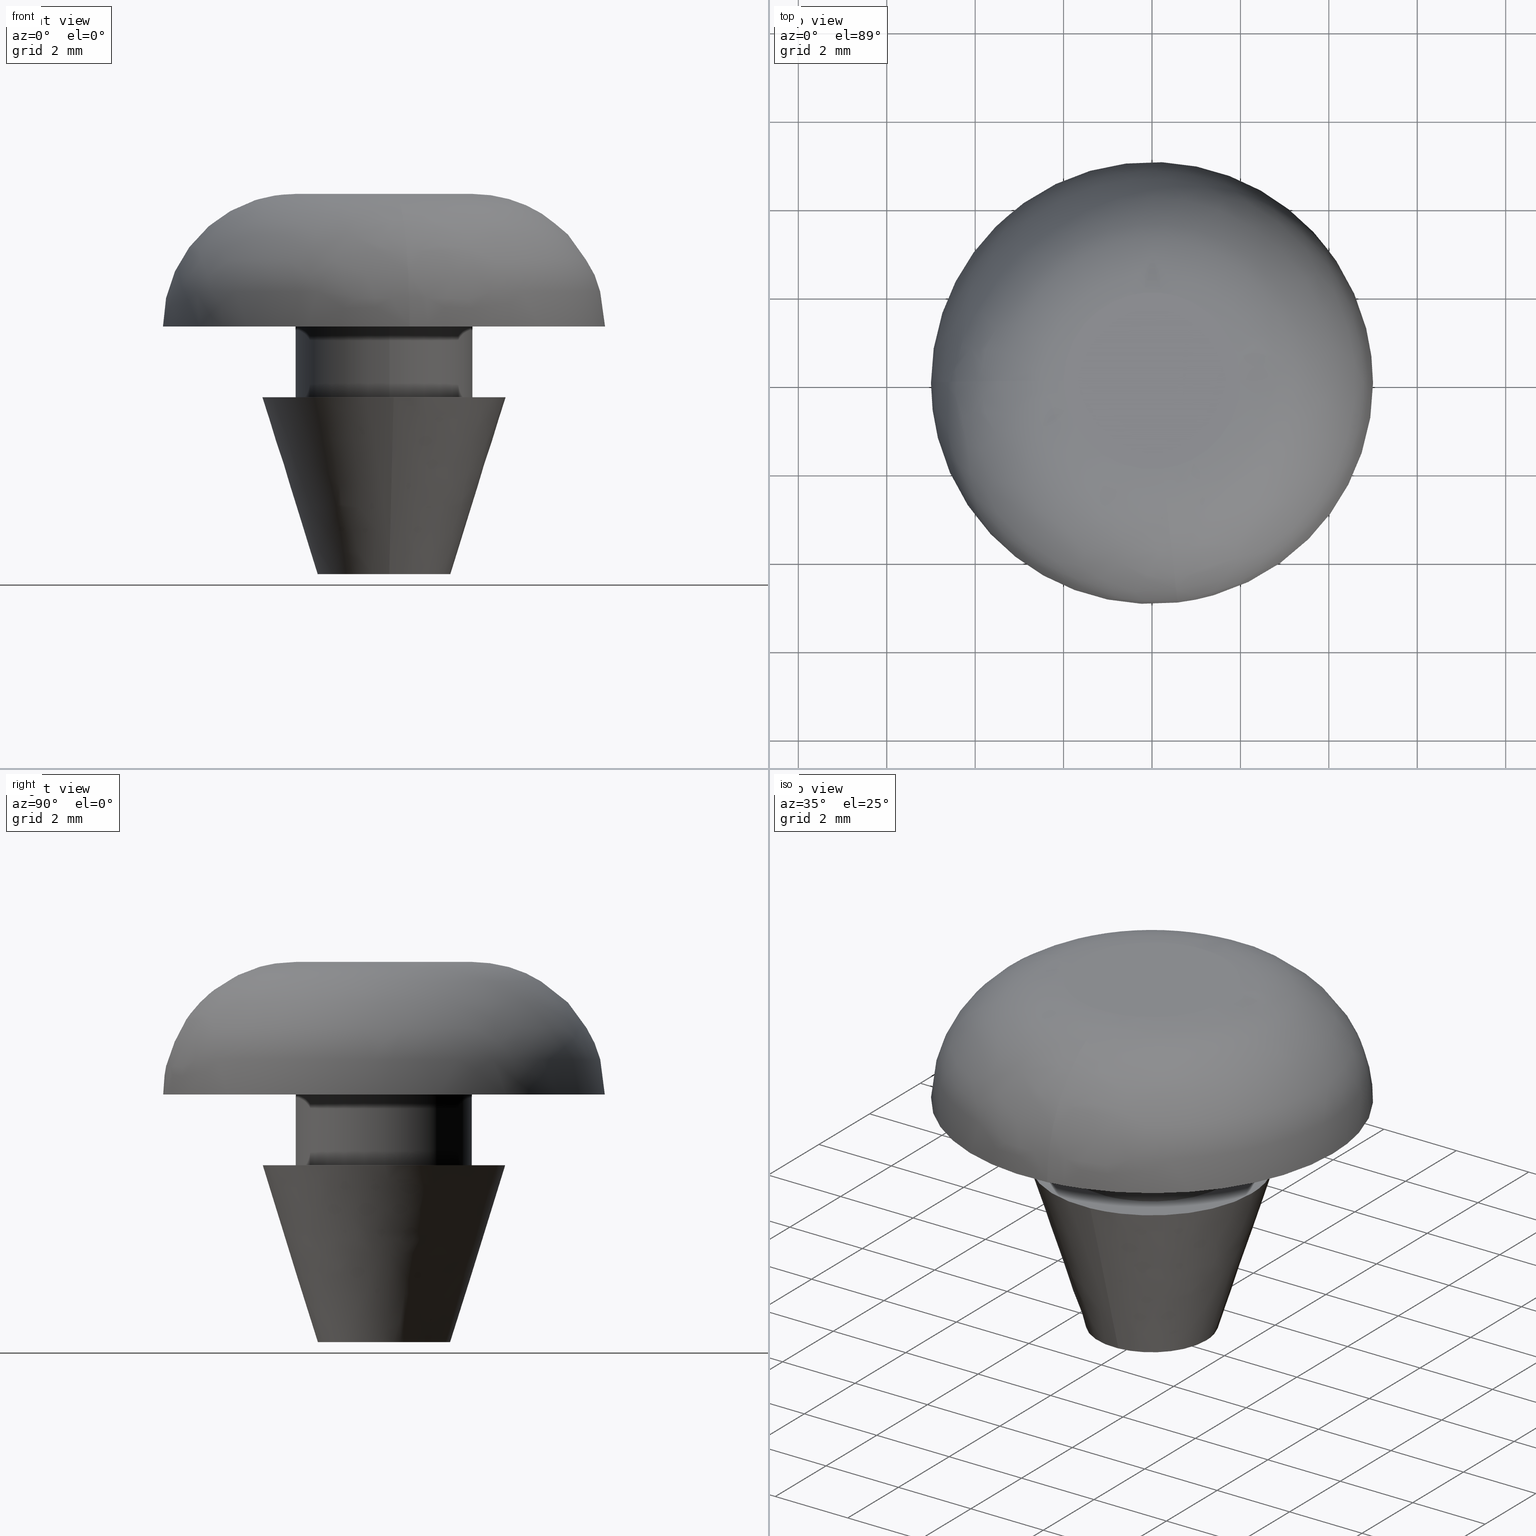
[diagram: canonical four-view strip — front | top / right | iso, engineering-drawing reading convention]
A machine part, canonical four-view strip (front | top / right | iso — engineering-drawing reading convention). The complete STEP part file that produces these views, byte-faithful:
ISO-10303-21;
HEADER;
/****************************************************************
 * Generated by software with PDE/Lib inside                    *
 * PDElib Version 4.4.1-0003, patched  Thursday August 19 11:58 *
 * International Technegroup Inc. (www.iti-oh.com)              *
 ****************************************************************/
FILE_DESCRIPTION((''),'2;1');
FILE_NAME('','2005-12-15T09:47:11',(''),(''),'','CADfix','');
FILE_SCHEMA(('AUTOMOTIVE_DESIGN'));
ENDSEC;
DATA;
#5=APPLICATION_CONTEXT('automotive design');
#6=APPLICATION_PROTOCOL_DEFINITION('Draft International Standard','automotive_design',1998,#5);
#7=PRODUCT_CONTEXT('None',#5,'mechanical');
#8=PRODUCT('cushion','','None',(#7));
#9=PRODUCT_RELATED_PRODUCT_CATEGORY('part','description',(#8));
#10=PRODUCT_DEFINITION_FORMATION('None','None',#8);
#11=PRODUCT_DEFINITION_CONTEXT('part definition',#5,'design');
#12=PRODUCT_DEFINITION('None','None',#10,#11);
#18=(NAMED_UNIT(*)PLANE_ANGLE_UNIT()SI_UNIT($,.RADIAN.));
#19=DIMENSIONAL_EXPONENTS(0.0,0.0,0.0,0.0,0.0,0.0,0.0);
#20=PLANE_ANGLE_MEASURE_WITH_UNIT(PLANE_ANGLE_MEASURE(0.017453292500000),#18);
#24=(CONVERSION_BASED_UNIT('DEGREE',#20)NAMED_UNIT(#19)PLANE_ANGLE_UNIT());
#28=(NAMED_UNIT(*)SI_UNIT($,.STERADIAN.)SOLID_ANGLE_UNIT());
#32=(LENGTH_UNIT()NAMED_UNIT(*)SI_UNIT(.MILLI.,.METRE.));
#34=UNCERTAINTY_MEASURE_WITH_UNIT(LENGTH_MEASURE(0.001000000000000),#32,'DISTANCE_ACCURACY_VALUE','');
#36=(GEOMETRIC_REPRESENTATION_CONTEXT(3)GLOBAL_UNCERTAINTY_ASSIGNED_CONTEXT((#34))GLOBAL_UNIT_ASSIGNED_CONTEXT((#24,#28,#32))REPRESENTATION_CONTEXT('None','None'));
#37=AXIS2_PLACEMENT_3D('',#38,#39,#40);
#38=CARTESIAN_POINT('',(0.0,0.0,0.0));
#39=DIRECTION('',(0.0,0.0,1.0));
#40=DIRECTION('',(1.0,0.0,0.0));
#41=ADVANCED_BREP_SHAPE_REPRESENTATION('',(#37,#891),#36);
#42=PRODUCT_DEFINITION_SHAPE('','',#12);
#43=SHAPE_DEFINITION_REPRESENTATION(#42,#41);
#44=CARTESIAN_POINT('',(0.118034234656758,-0.993009526363666,5.740000000000000));
#45=CARTESIAN_POINT('',(0.089614728637978,-0.996387615448606,5.740000000000000));
#46=CARTESIAN_POINT('',(0.061048539534857,-0.998134798421867,5.740000000000000));
#47=CARTESIAN_POINT('',(-0.937086258887010,-1.059183337956724,5.740000000000000));
#48=CARTESIAN_POINT('',(-0.998134798421867,-0.061048539534857,5.740000000000000));
#49=CARTESIAN_POINT('',(-1.059183337956724,0.937086258887010,5.740000000000000));
#50=CARTESIAN_POINT('',(-0.061048539534857,0.998134798421867,5.740000000000000));
#51=CARTESIAN_POINT('',(0.118034234656758,-0.993009526363666,-0.143500000000000));
#52=CARTESIAN_POINT('',(0.089614728637978,-0.996387615448606,-0.143500000000000));
#53=CARTESIAN_POINT('',(0.061048539534857,-0.998134798421867,-0.143500000000000));
#54=CARTESIAN_POINT('',(-0.937086258887010,-1.059183337956724,-0.143500000000000));
#55=CARTESIAN_POINT('',(-0.998134798421867,-0.061048539534857,-0.143500000000000));
#56=CARTESIAN_POINT('',(-1.059183337956724,0.937086258887010,-0.143500000000000));
#57=CARTESIAN_POINT('',(-0.061048539534857,0.998134798421867,-0.143500000000000));
#65=(BOUNDED_SURFACE()B_SPLINE_SURFACE(2,1,((#44,#51),(#45,#52),(#46,#53),(#47,#54),(#48,#55),(#49,#56),(#50,#57)),.UNSPECIFIED.,.F.,.F.,.U.)B_SPLINE_SURFACE_WITH_KNOTS((3,2,2,3),(2,2),(3.078760800517997,3.141592653589793,4.712388980384690,6.283185307179586),(0.0,5.883500000000001),.UNSPECIFIED.)GEOMETRIC_REPRESENTATION_ITEM()RATIONAL_B_SPLINE_SURFACE(((0.977505800795127,0.977505800795127),(0.988284271247462,0.988284271247462),(1.0,1.0),(0.707106781186548,0.707106781186548),(1.0,1.0),(0.707106781186548,0.707106781186548),(1.0,1.0)))REPRESENTATION_ITEM('')SURFACE());
#66=CARTESIAN_POINT('',(0.118034234668052,-0.993009526362324,5.600000000000000));
#67=VERTEX_POINT('',#66);
#68=CARTESIAN_POINT('',(-1.0,0.0,5.600000000000000));
#69=VERTEX_POINT('',#68);
#70=CARTESIAN_POINT('',(0.118034234668052,-0.993009526362324,5.600000000000000));
#71=CARTESIAN_POINT('',(0.059224119663323,-1.0,5.599999999999999));
#72=CARTESIAN_POINT('',(0.0,-1.0,5.600000000000000));
#73=CARTESIAN_POINT('',(-1.0,-1.0,5.600000000000000));
#74=CARTESIAN_POINT('',(-1.0,0.0,5.600000000000000));
#82=(BOUNDED_CURVE()B_SPLINE_CURVE(2,(#70,#71,#72,#73,#74),.UNSPECIFIED.,.F.,.U.)B_SPLINE_CURVE_WITH_KNOTS((3,2,3),(0.229562473511800,0.250000000000000,0.500000000000000),.UNSPECIFIED.)CURVE()GEOMETRIC_REPRESENTATION_ITEM()RATIONAL_B_SPLINE_CURVE((0.956026754180351,0.976055948329144,1.0,0.707106781186548,1.0))REPRESENTATION_ITEM(''));
#83=EDGE_CURVE('',#67,#69,#82,.T.);
#84=ORIENTED_EDGE('',*,*,#83,.F.);
#85=CARTESIAN_POINT('',(0.118034234668052,-0.993009526362324,-1.277743E-016));
#86=VERTEX_POINT('',#85);
#87=CARTESIAN_POINT('',(0.118034234668052,-0.993009526362324,5.600000000000000));
#88=CARTESIAN_POINT('',(0.118034234668052,-0.993009526362324,-1.277743E-016));
#89=QUASI_UNIFORM_CURVE('',1,(#87,#88),.UNSPECIFIED.,.F.,.U.);
#90=EDGE_CURVE('',#67,#86,#89,.T.);
#91=ORIENTED_EDGE('',*,*,#90,.T.);
#92=CARTESIAN_POINT('',(-1.0,0.0,0.0));
#93=VERTEX_POINT('',#92);
#94=CARTESIAN_POINT('',(0.118034234668052,-0.993009526362324,-1.277743E-016));
#95=CARTESIAN_POINT('',(0.059224119663323,-1.0,0.0));
#96=CARTESIAN_POINT('',(0.0,-1.0,0.0));
#97=CARTESIAN_POINT('',(-1.0,-1.0,0.0));
#98=CARTESIAN_POINT('',(-1.0,0.0,0.0));
#106=(BOUNDED_CURVE()B_SPLINE_CURVE(2,(#94,#95,#96,#97,#98),.UNSPECIFIED.,.F.,.U.)B_SPLINE_CURVE_WITH_KNOTS((3,2,3),(0.229562473511800,0.250000000000000,0.500000000000000),.UNSPECIFIED.)CURVE()GEOMETRIC_REPRESENTATION_ITEM()RATIONAL_B_SPLINE_CURVE((0.956026754180351,0.976055948329144,1.0,0.707106781186548,1.0))REPRESENTATION_ITEM(''));
#107=EDGE_CURVE('',#86,#93,#106,.T.);
#108=ORIENTED_EDGE('',*,*,#107,.T.);
#109=CARTESIAN_POINT('',(-0.061048408130334,0.998134806458894,-1.387779E-016));
#110=VERTEX_POINT('',#109);
#111=CARTESIAN_POINT('',(-1.0,0.0,0.0));
#112=CARTESIAN_POINT('',(-1.0,0.940706315056634,0.0));
#113=CARTESIAN_POINT('',(-0.061048408130334,0.998134806458894,-1.387779E-016));
#121=(BOUNDED_CURVE()B_SPLINE_CURVE(2,(#111,#112,#113),.UNSPECIFIED.,.F.,.U.)B_SPLINE_CURVE_WITH_KNOTS((3,3),(0.500000000000000,0.739333007673568),.UNSPECIFIED.)CURVE()GEOMETRIC_REPRESENTATION_ITEM()RATIONAL_B_SPLINE_CURVE((1.0,0.719603940056736,0.976072139041787))REPRESENTATION_ITEM(''));
#122=EDGE_CURVE('',#93,#110,#121,.T.);
#123=ORIENTED_EDGE('',*,*,#122,.T.);
#124=CARTESIAN_POINT('',(-0.061048406531516,0.998134806556682,5.600000000000000));
#125=VERTEX_POINT('',#124);
#126=CARTESIAN_POINT('',(-0.061048406531516,0.998134806556682,5.600000000000000));
#127=CARTESIAN_POINT('',(-0.061048408130334,0.998134806458894,-1.387779E-016));
#128=QUASI_UNIFORM_CURVE('',1,(#126,#127),.UNSPECIFIED.,.F.,.U.);
#129=EDGE_CURVE('',#125,#110,#128,.T.);
#130=ORIENTED_EDGE('',*,*,#129,.F.);
#131=CARTESIAN_POINT('',(-1.0,0.0,5.600000000000000));
#132=CARTESIAN_POINT('',(-1.0,0.940706318075914,5.600000000000001));
#133=CARTESIAN_POINT('',(-0.061048406531516,0.998134806556682,5.600000000000000));
#141=(BOUNDED_CURVE()B_SPLINE_CURVE(2,(#131,#132,#133),.UNSPECIFIED.,.F.,.U.)B_SPLINE_CURVE_WITH_KNOTS((3,3),(0.500000000000000,0.739333008226339),.UNSPECIFIED.)CURVE()GEOMETRIC_REPRESENTATION_ITEM()RATIONAL_B_SPLINE_CURVE((1.0,0.719603939409124,0.976072140226481))REPRESENTATION_ITEM(''));
#142=EDGE_CURVE('',#69,#125,#141,.T.);
#143=ORIENTED_EDGE('',*,*,#142,.F.);
#144=EDGE_LOOP('',(#84,#91,#108,#123,#130,#143));
#145=FACE_OUTER_BOUND('',#144,.T.);
#146=ADVANCED_FACE('',(#145),#65,.F.);
#147=CARTESIAN_POINT('',(-0.061048539534857,0.998134798421867,5.740000000000000));
#148=CARTESIAN_POINT('',(0.937086258887010,1.059183337956724,5.740000000000000));
#149=CARTESIAN_POINT('',(0.998134798421867,0.061048539534857,5.740000000000000));
#150=CARTESIAN_POINT('',(1.055786196732528,-0.881543490839501,5.740000000000000));
#151=CARTESIAN_POINT('',(0.118034234656758,-0.993009526363666,5.740000000000000));
#152=CARTESIAN_POINT('',(-0.061048539534857,0.998134798421867,-0.143500000000000));
#153=CARTESIAN_POINT('',(0.937086258887010,1.059183337956724,-0.143500000000000));
#154=CARTESIAN_POINT('',(0.998134798421867,0.061048539534857,-0.143500000000000));
#155=CARTESIAN_POINT('',(1.055786196732528,-0.881543490839501,-0.143500000000000));
#156=CARTESIAN_POINT('',(0.118034234656758,-0.993009526363666,-0.143500000000000));
#164=(BOUNDED_SURFACE()B_SPLINE_SURFACE(2,1,((#147,#152),(#148,#153),(#149,#154),(#150,#155),(#151,#156)),.UNSPECIFIED.,.F.,.F.,.U.)B_SPLINE_SURFACE_WITH_KNOTS((3,2,3),(2,2),(0.0,1.570796326794897,3.078760800517997),(0.0,5.883500000000001),.UNSPECIFIED.)GEOMETRIC_REPRESENTATION_ITEM()RATIONAL_B_SPLINE_SURFACE(((1.0,1.0),(0.707106781186548,0.707106781186548),(1.0,1.0),(0.718822509939086,0.718822509939086),(0.977505800795127,0.977505800795127)))REPRESENTATION_ITEM('')SURFACE());
#165=CARTESIAN_POINT('',(1.0,0.0,5.600000000000000));
#166=VERTEX_POINT('',#165);
#167=CARTESIAN_POINT('',(1.0,0.0,5.600000000000000));
#168=CARTESIAN_POINT('',(1.0,-0.888174525931023,5.600000000000000));
#169=CARTESIAN_POINT('',(0.118034234668052,-0.993009526362324,5.600000000000000));
#177=(BOUNDED_CURVE()B_SPLINE_CURVE(2,(#167,#168,#169),.UNSPECIFIED.,.F.,.U.)B_SPLINE_CURVE_WITH_KNOTS((3,3),(0.0,0.229562473511800),.UNSPECIFIED.)CURVE()GEOMETRIC_REPRESENTATION_ITEM()RATIONAL_B_SPLINE_CURVE((1.0,0.731050832857404,0.956026754180351))REPRESENTATION_ITEM(''));
#178=EDGE_CURVE('',#166,#67,#177,.T.);
#179=ORIENTED_EDGE('',*,*,#178,.F.);
#180=CARTESIAN_POINT('',(-0.061048406531516,0.998134806556682,5.600000000000000));
#181=CARTESIAN_POINT('',(-0.030552629922321,1.0,5.600000000000000));
#182=CARTESIAN_POINT('',(0.0,1.0,5.600000000000000));
#183=CARTESIAN_POINT('',(1.0,1.0,5.600000000000000));
#184=CARTESIAN_POINT('',(1.0,0.0,5.600000000000000));
#192=(BOUNDED_CURVE()B_SPLINE_CURVE(2,(#180,#181,#182,#183,#184),.UNSPECIFIED.,.F.,.U.)B_SPLINE_CURVE_WITH_KNOTS((3,2,3),(0.739333008226339,0.750000000000000,1.0),.UNSPECIFIED.)CURVE()GEOMETRIC_REPRESENTATION_ITEM()RATIONAL_B_SPLINE_CURVE((0.976072140226482,0.987502841777424,1.0,0.707106781186548,1.0))REPRESENTATION_ITEM(''));
#193=EDGE_CURVE('',#125,#166,#192,.T.);
#194=ORIENTED_EDGE('',*,*,#193,.F.);
#195=ORIENTED_EDGE('',*,*,#129,.T.);
#196=CARTESIAN_POINT('',(1.0,0.0,0.0));
#197=VERTEX_POINT('',#196);
#198=CARTESIAN_POINT('',(-0.061048408130334,0.998134806458894,-1.387779E-016));
#199=CARTESIAN_POINT('',(-0.030552631525622,1.0,0.0));
#200=CARTESIAN_POINT('',(0.0,1.0,0.0));
#201=CARTESIAN_POINT('',(1.0,1.0,0.0));
#202=CARTESIAN_POINT('',(1.0,0.0,0.0));
#210=(BOUNDED_CURVE()B_SPLINE_CURVE(2,(#198,#199,#200,#201,#202),.UNSPECIFIED.,.F.,.U.)B_SPLINE_CURVE_WITH_KNOTS((3,2,3),(0.739333007673567,0.750000000000000,1.0),.UNSPECIFIED.)CURVE()GEOMETRIC_REPRESENTATION_ITEM()RATIONAL_B_SPLINE_CURVE((0.976072139041785,0.987502841129810,1.0,0.707106781186548,1.0))REPRESENTATION_ITEM(''));
#211=EDGE_CURVE('',#110,#197,#210,.T.);
#212=ORIENTED_EDGE('',*,*,#211,.T.);
#213=CARTESIAN_POINT('',(1.0,0.0,0.0));
#214=CARTESIAN_POINT('',(1.0,-0.888174525931023,0.0));
#215=CARTESIAN_POINT('',(0.118034234668052,-0.993009526362324,-1.277743E-016));
#223=(BOUNDED_CURVE()B_SPLINE_CURVE(2,(#213,#214,#215),.UNSPECIFIED.,.F.,.U.)B_SPLINE_CURVE_WITH_KNOTS((3,3),(0.0,0.229562473511800),.UNSPECIFIED.)CURVE()GEOMETRIC_REPRESENTATION_ITEM()RATIONAL_B_SPLINE_CURVE((1.0,0.731050832857404,0.956026754180351))REPRESENTATION_ITEM(''));
#224=EDGE_CURVE('',#197,#86,#223,.T.);
#225=ORIENTED_EDGE('',*,*,#224,.T.);
#226=ORIENTED_EDGE('',*,*,#90,.F.);
#227=EDGE_LOOP('',(#179,#194,#195,#212,#225,#226));
#228=FACE_OUTER_BOUND('',#227,.T.);
#229=ADVANCED_FACE('',(#228),#164,.F.);
#230=CARTESIAN_POINT('',(-0.236068469313517,1.986019052727332,5.640000000000002));
#231=CARTESIAN_POINT('',(-0.179229457275955,1.992775230897211,5.640000000000001));
#232=CARTESIAN_POINT('',(-0.122097079069714,1.996269596843733,5.640000000000001));
#233=CARTESIAN_POINT('',(1.874172517774020,2.118366675913447,5.640000000000001));
#234=CARTESIAN_POINT('',(1.996269596843733,0.122097079069714,5.640000000000001));
#235=CARTESIAN_POINT('',(2.118366675913447,-1.874172517774020,5.640000000000001));
#236=CARTESIAN_POINT('',(0.122097079069714,-1.996269596843733,5.640000000000001));
#237=CARTESIAN_POINT('',(-0.236068469313517,1.986019052727332,3.959000000000000));
#238=CARTESIAN_POINT('',(-0.179229457275955,1.992775230897211,3.959000000000001));
#239=CARTESIAN_POINT('',(-0.122097079069714,1.996269596843733,3.959000000000000));
#240=CARTESIAN_POINT('',(1.874172517774020,2.118366675913447,3.959000000000000));
#241=CARTESIAN_POINT('',(1.996269596843733,0.122097079069714,3.959000000000000));
#242=CARTESIAN_POINT('',(2.118366675913447,-1.874172517774020,3.959000000000000));
#243=CARTESIAN_POINT('',(0.122097079069714,-1.996269596843733,3.959000000000000));
#251=(BOUNDED_SURFACE()B_SPLINE_SURFACE(2,1,((#230,#237),(#231,#238),(#232,#239),(#233,#240),(#234,#241),(#235,#242),(#236,#243)),.UNSPECIFIED.,.F.,.F.,.U.)B_SPLINE_SURFACE_WITH_KNOTS((3,2,2,3),(2,2),(0.0,0.132548339959391,3.446256838944149,6.759965337928908),(0.0,1.0),.UNSPECIFIED.)GEOMETRIC_REPRESENTATION_ITEM()RATIONAL_B_SPLINE_SURFACE(((0.977505800795127,0.977505800795127),(0.988284271247462,0.988284271247462),(1.0,1.0),(0.707106781186548,0.707106781186548),(1.0,1.0),(0.707106781186548,0.707106781186548),(1.0,1.0)))REPRESENTATION_ITEM('')SURFACE());
#252=CARTESIAN_POINT('',(-0.236064975085184,1.986019468063102,5.599999999999999));
#253=VERTEX_POINT('',#252);
#254=CARTESIAN_POINT('',(2.0,0.0,5.600000000000000));
#255=VERTEX_POINT('',#254);
#256=CARTESIAN_POINT('',(-0.236064975085184,1.986019468063103,5.599999999999999));
#257=CARTESIAN_POINT('',(-0.118446473719847,2.0,5.600000000000000));
#258=CARTESIAN_POINT('',(0.0,2.0,5.600000000000000));
#259=CARTESIAN_POINT('',(2.000000000000000,2.000000000000000,5.600000000000000));
#260=CARTESIAN_POINT('',(2.0,0.0,5.600000000000000));
#268=(BOUNDED_CURVE()B_SPLINE_CURVE(2,(#256,#257,#258,#259,#260),.UNSPECIFIED.,.F.,.U.)B_SPLINE_CURVE_WITH_KNOTS((3,2,3),(0.229562770862239,0.250000000000000,0.500000000000000),.UNSPECIFIED.)CURVE()GEOMETRIC_REPRESENTATION_ITEM()RATIONAL_B_SPLINE_CURVE((0.956027337000208,0.976056296696852,1.0,0.707106781186548,1.0))REPRESENTATION_ITEM(''));
#269=EDGE_CURVE('',#253,#255,#268,.T.);
#270=ORIENTED_EDGE('',*,*,#269,.T.);
#271=CARTESIAN_POINT('',(0.122096446461035,-1.996269635535537,5.599999999999997));
#272=VERTEX_POINT('',#271);
#273=CARTESIAN_POINT('',(2.0,0.0,5.600000000000000));
#274=CARTESIAN_POINT('',(2.0,-1.881413328461733,5.600000000000000));
#275=CARTESIAN_POINT('',(0.122096446461035,-1.996269635535536,5.599999999999998));
#283=(BOUNDED_CURVE()B_SPLINE_CURVE(2,(#273,#274,#275),.UNSPECIFIED.,.F.,.U.)B_SPLINE_CURVE_WITH_KNOTS((3,3),(0.500000000000000,0.739333071600552),.UNSPECIFIED.)CURVE()GEOMETRIC_REPRESENTATION_ITEM()RATIONAL_B_SPLINE_CURVE((1.0,0.719603865161616,0.976072276049575))REPRESENTATION_ITEM(''));
#284=EDGE_CURVE('',#255,#272,#283,.T.);
#285=ORIENTED_EDGE('',*,*,#284,.T.);
#286=CARTESIAN_POINT('',(0.122096454071438,-1.996269635070069,4.0));
#287=VERTEX_POINT('',#286);
#288=CARTESIAN_POINT('',(0.122096446461035,-1.996269635535537,5.599999999999997));
#289=CARTESIAN_POINT('',(0.122096454071438,-1.996269635070069,4.0));
#290=QUASI_UNIFORM_CURVE('',1,(#288,#289),.UNSPECIFIED.,.F.,.U.);
#291=EDGE_CURVE('',#272,#287,#290,.T.);
#292=ORIENTED_EDGE('',*,*,#291,.T.);
#293=CARTESIAN_POINT('',(2.0,0.0,4.0));
#294=VERTEX_POINT('',#293);
#295=CARTESIAN_POINT('',(2.0,0.0,4.0));
#296=CARTESIAN_POINT('',(2.0,-1.881413314089851,4.0));
#297=CARTESIAN_POINT('',(0.122096454071438,-1.996269635070070,4.000000000000000));
#305=(BOUNDED_CURVE()B_SPLINE_CURVE(2,(#295,#296,#297),.UNSPECIFIED.,.F.,.U.)B_SPLINE_CURVE_WITH_KNOTS((3,3),(0.500000000000000,0.739333070284946),.UNSPECIFIED.)CURVE()GEOMETRIC_REPRESENTATION_ITEM()RATIONAL_B_SPLINE_CURVE((1.0,0.719603866702944,0.976072273229979))REPRESENTATION_ITEM(''));
#306=EDGE_CURVE('',#294,#287,#305,.T.);
#307=ORIENTED_EDGE('',*,*,#306,.F.);
#308=CARTESIAN_POINT('',(-0.236065017184175,1.986019463059148,4.0));
#309=VERTEX_POINT('',#308);
#310=CARTESIAN_POINT('',(-0.236065017184175,1.986019463059149,4.000000000000000));
#311=CARTESIAN_POINT('',(-0.118446494991864,2.0,4.0));
#312=CARTESIAN_POINT('',(0.0,2.0,4.0));
#313=CARTESIAN_POINT('',(2.000000000000000,2.000000000000000,4.000000000000000));
#314=CARTESIAN_POINT('',(2.0,0.0,4.0));
#322=(BOUNDED_CURVE()B_SPLINE_CURVE(2,(#310,#311,#312,#313,#314),.UNSPECIFIED.,.F.,.U.)B_SPLINE_CURVE_WITH_KNOTS((3,2,3),(0.229562767279762,0.250000000000000,0.500000000000000),.UNSPECIFIED.)CURVE()GEOMETRIC_REPRESENTATION_ITEM()RATIONAL_B_SPLINE_CURVE((0.956027329978387,0.976056292499719,1.0,0.707106781186548,1.0))REPRESENTATION_ITEM(''));
#323=EDGE_CURVE('',#309,#294,#322,.T.);
#324=ORIENTED_EDGE('',*,*,#323,.F.);
#325=CARTESIAN_POINT('',(-0.236064975085184,1.986019468063102,5.599999999999999));
#326=CARTESIAN_POINT('',(-0.236065017184175,1.986019463059148,4.0));
#327=QUASI_UNIFORM_CURVE('',1,(#325,#326),.UNSPECIFIED.,.F.,.U.);
#328=EDGE_CURVE('',#253,#309,#327,.T.);
#329=ORIENTED_EDGE('',*,*,#328,.F.);
#330=EDGE_LOOP('',(#270,#285,#292,#307,#324,#329));
#331=FACE_OUTER_BOUND('',#330,.T.);
#332=ADVANCED_FACE('',(#331),#251,.T.);
#333=CARTESIAN_POINT('',(0.149605438622945,-1.994587113497415,5.639999999999998));
#334=CARTESIAN_POINT('',(0.135890624341920,-1.995425947473722,5.640000000000002));
#335=CARTESIAN_POINT('',(-1.874172517774020,-2.118366675913447,5.640000000000001));
#336=CARTESIAN_POINT('',(-1.996269596843733,-0.122097079069714,5.640000000000001));
#337=CARTESIAN_POINT('',(-2.111572393465055,1.763086981679002,5.640000000000001));
#338=CARTESIAN_POINT('',(-0.222025548796273,1.987688266699195,5.640000000000002));
#339=CARTESIAN_POINT('',(-0.208058103596494,1.989348509285490,5.640000000000002));
#340=CARTESIAN_POINT('',(0.149605438622945,-1.994587113497415,3.958999999999998));
#341=CARTESIAN_POINT('',(0.135890624341920,-1.995425947473722,3.959000000000000));
#342=CARTESIAN_POINT('',(-1.874172517774020,-2.118366675913447,3.959000000000000));
#343=CARTESIAN_POINT('',(-1.996269596843733,-0.122097079069714,3.959000000000000));
#344=CARTESIAN_POINT('',(-2.111572393465055,1.763086981679002,3.959000000000000));
#345=CARTESIAN_POINT('',(-0.222025548796273,1.987688266699195,3.959000000000001));
#346=CARTESIAN_POINT('',(-0.208058103596494,1.989348509285490,3.959000000000001));
#354=(BOUNDED_SURFACE()B_SPLINE_SURFACE(2,1,((#333,#340),(#334,#341),(#335,#342),(#336,#343),(#337,#344),(#338,#345),(#339,#346)),.UNSPECIFIED.,.F.,.F.,.U.)B_SPLINE_SURFACE_WITH_KNOTS((3,1,2,1,3),(2,2),(0.0,0.032473625446056,3.346182124430814,6.527342283456183,6.559820672328827),(0.0,1.0),.UNSPECIFIED.)GEOMETRIC_REPRESENTATION_ITEM()RATIONAL_B_SPLINE_SURFACE(((1.005740580190655,1.005740580190655),(1.002870290095327,1.002870290095327),(0.707106781186548,0.707106781186548),(1.0,1.0),(0.718822509939086,0.718822509939086),(0.980146855031721,0.980146855031721),(0.982787909268315,0.982787909268315)))REPRESENTATION_ITEM('')SURFACE());
#355=CARTESIAN_POINT('',(-2.0,0.0,5.600000000000000));
#356=VERTEX_POINT('',#355);
#357=CARTESIAN_POINT('',(-2.0,0.0,5.600000000000000));
#358=CARTESIAN_POINT('',(-2.000000000000000,1.776352199238033,5.600000000000001));
#359=CARTESIAN_POINT('',(-0.236064975085184,1.986019468063103,5.599999999999999));
#367=(BOUNDED_CURVE()B_SPLINE_CURVE(2,(#357,#358,#359),.UNSPECIFIED.,.F.,.U.)B_SPLINE_CURVE_WITH_KNOTS((3,3),(0.0,0.229562770862239),.UNSPECIFIED.)CURVE()GEOMETRIC_REPRESENTATION_ITEM()RATIONAL_B_SPLINE_CURVE((1.0,0.731050484489696,0.956027337000208))REPRESENTATION_ITEM(''));
#368=EDGE_CURVE('',#356,#253,#367,.T.);
#369=ORIENTED_EDGE('',*,*,#368,.T.);
#370=ORIENTED_EDGE('',*,*,#328,.T.);
#371=CARTESIAN_POINT('',(-2.0,0.0,4.0));
#372=VERTEX_POINT('',#371);
#373=CARTESIAN_POINT('',(-2.0,0.0,4.0));
#374=CARTESIAN_POINT('',(-2.000000000000000,1.776352161318441,4.000000000000001));
#375=CARTESIAN_POINT('',(-0.236065017184175,1.986019463059149,4.000000000000001));
#383=(BOUNDED_CURVE()B_SPLINE_CURVE(2,(#373,#374,#375),.UNSPECIFIED.,.F.,.U.)B_SPLINE_CURVE_WITH_KNOTS((3,3),(0.0,0.229562767279762),.UNSPECIFIED.)CURVE()GEOMETRIC_REPRESENTATION_ITEM()RATIONAL_B_SPLINE_CURVE((1.0,0.731050488686828,0.956027329978387))REPRESENTATION_ITEM(''));
#384=EDGE_CURVE('',#372,#309,#383,.T.);
#385=ORIENTED_EDGE('',*,*,#384,.F.);
#386=CARTESIAN_POINT('',(0.122096454071438,-1.996269635070070,4.000000000000001));
#387=CARTESIAN_POINT('',(0.061104899846485,-2.000000000000000,4.0));
#388=CARTESIAN_POINT('',(0.0,-2.0,4.0));
#389=CARTESIAN_POINT('',(-2.000000000000000,-2.000000000000000,4.000000000000000));
#390=CARTESIAN_POINT('',(-2.0,0.0,4.0));
#398=(BOUNDED_CURVE()B_SPLINE_CURVE(2,(#386,#387,#388,#389,#390),.UNSPECIFIED.,.F.,.U.)B_SPLINE_CURVE_WITH_KNOTS((3,2,3),(0.739333070284947,0.750000000000000,1.0),.UNSPECIFIED.)CURVE()GEOMETRIC_REPRESENTATION_ITEM()RATIONAL_B_SPLINE_CURVE((0.976072273229982,0.987502914483605,1.0,0.707106781186548,1.0))REPRESENTATION_ITEM(''));
#399=EDGE_CURVE('',#287,#372,#398,.T.);
#400=ORIENTED_EDGE('',*,*,#399,.F.);
#401=ORIENTED_EDGE('',*,*,#291,.F.);
#402=CARTESIAN_POINT('',(0.122096446461035,-1.996269635535537,5.599999999999997));
#403=CARTESIAN_POINT('',(0.061104892214744,-2.000000000000000,5.600000000000000));
#404=CARTESIAN_POINT('',(0.0,-2.0,5.600000000000000));
#405=CARTESIAN_POINT('',(-2.000000000000000,-2.000000000000000,5.600000000000000));
#406=CARTESIAN_POINT('',(-2.0,0.0,5.600000000000000));
#414=(BOUNDED_CURVE()B_SPLINE_CURVE(2,(#402,#403,#404,#405,#406),.UNSPECIFIED.,.F.,.U.)B_SPLINE_CURVE_WITH_KNOTS((3,2,3),(0.739333071600552,0.750000000000000,1.0),.UNSPECIFIED.)CURVE()GEOMETRIC_REPRESENTATION_ITEM()RATIONAL_B_SPLINE_CURVE((0.976072276049576,0.987502916024932,1.0,0.707106781186548,1.0))REPRESENTATION_ITEM(''));
#415=EDGE_CURVE('',#272,#356,#414,.T.);
#416=ORIENTED_EDGE('',*,*,#415,.T.);
#417=EDGE_LOOP('',(#369,#370,#385,#400,#401,#416));
#418=FACE_OUTER_BOUND('',#417,.T.);
#419=ADVANCED_FACE('',(#418),#354,.T.);
#420=CARTESIAN_POINT('',(-0.115236796850273,1.464222333920532,-0.100000000000000));
#421=CARTESIAN_POINT('',(-1.579459130770805,1.348985537070258,-0.100000000000000));
#422=CARTESIAN_POINT('',(-1.464222333920532,-0.115236796850273,-0.100000000000000));
#423=CARTESIAN_POINT('',(-1.348985537070258,-1.579459130770805,-0.100000000000000));
#424=CARTESIAN_POINT('',(0.115236796850273,-1.464222333920532,-0.100000000000000));
#425=CARTESIAN_POINT('',(-0.218275656161607,2.773455176112237,4.102500000000000));
#426=CARTESIAN_POINT('',(-2.991730832273845,2.555179519950629,4.102499999999999));
#427=CARTESIAN_POINT('',(-2.773455176112237,-0.218275656161607,4.102500000000000));
#428=CARTESIAN_POINT('',(-2.555179519950629,-2.991730832273845,4.102499999999999));
#429=CARTESIAN_POINT('',(0.218275656161607,-2.773455176112237,4.102500000000000));
#437=(BOUNDED_SURFACE()B_SPLINE_SURFACE(2,1,((#420,#425),(#421,#426),(#422,#427),(#423,#428),(#424,#429)),.UNSPECIFIED.,.F.,.F.,.U.)B_SPLINE_SURFACE_WITH_KNOTS((3,2,3),(2,2),(0.0,4.609420298783092,9.218840597566183),(0.0,4.402921063521530),.UNSPECIFIED.)GEOMETRIC_REPRESENTATION_ITEM()RATIONAL_B_SPLINE_SURFACE(((1.0,1.0),(0.707106781186548,0.707106781186548),(1.0,1.0),(0.707106781186548,0.707106781186548),(1.0,1.0)))REPRESENTATION_ITEM('')SURFACE());
#438=CARTESIAN_POINT('',(-1.500000000000000,0.0,0.0));
#439=VERTEX_POINT('',#438);
#440=CARTESIAN_POINT('',(-0.117687202829106,1.495375771703661,-0.000001091936049));
#441=VERTEX_POINT('',#440);
#442=CARTESIAN_POINT('',(-1.500000000000000,0.0,0.0));
#443=CARTESIAN_POINT('',(-1.499999986613836,1.386586882573644,-0.000000545968024));
#444=CARTESIAN_POINT('',(-0.117687202829106,1.495375771703661,-0.000001091936049));
#452=(BOUNDED_CURVE()B_SPLINE_CURVE(2,(#442,#443,#444),.UNSPECIFIED.,.F.,.U.)B_SPLINE_CURVE_WITH_KNOTS((3,3),(0.0,0.236331462727521),.UNSPECIFIED.)CURVE()GEOMETRIC_REPRESENTATION_ITEM()RATIONAL_B_SPLINE_CURVE((1.0,0.723120468699380,0.969723694451448))REPRESENTATION_ITEM(''));
#453=EDGE_CURVE('',#439,#441,#452,.T.);
#454=ORIENTED_EDGE('',*,*,#453,.F.);
#455=CARTESIAN_POINT('',(0.117687202829106,-1.495375771703661,-0.000001091936049));
#456=VERTEX_POINT('',#455);
#457=CARTESIAN_POINT('',(0.117687202829106,-1.495375771703661,-0.000001091936049));
#458=CARTESIAN_POINT('',(0.058934423949279,-1.499999665998666,-0.000001072107037));
#459=CARTESIAN_POINT('',(-0.000000025760220,-1.499999672681416,-0.000001050656154));
#460=CARTESIAN_POINT('',(-1.500000012374056,-1.499999842770821,-0.000000504688129));
#461=CARTESIAN_POINT('',(-1.500000000000000,0.0,0.0));
#469=(BOUNDED_CURVE()B_SPLINE_CURVE(2,(#457,#458,#459,#460,#461),.UNSPECIFIED.,.F.,.U.)B_SPLINE_CURVE_WITH_KNOTS((3,2,3),(0.736331462727521,0.750000000000000,1.0),.UNSPECIFIED.)CURVE()GEOMETRIC_REPRESENTATION_ITEM()RATIONAL_B_SPLINE_CURVE((0.969723694451448,0.983986312487168,1.0,0.707106781186548,1.0))REPRESENTATION_ITEM(''));
#470=EDGE_CURVE('',#456,#439,#469,.T.);
#471=ORIENTED_EDGE('',*,*,#470,.F.);
#472=CARTESIAN_POINT('',(0.215762513258509,-2.741522667765943,4.000000000001242));
#473=VERTEX_POINT('',#472);
#474=CARTESIAN_POINT('',(0.117687202829106,-1.495375771703661,-0.000001091936049));
#475=CARTESIAN_POINT('',(0.215762513258509,-2.741522667765943,4.000000000001242));
#476=QUASI_UNIFORM_CURVE('',1,(#474,#475),.UNSPECIFIED.,.F.,.U.);
#477=EDGE_CURVE('',#456,#473,#476,.T.);
#478=ORIENTED_EDGE('',*,*,#477,.T.);
#479=CARTESIAN_POINT('',(-2.750000000000000,0.0,4.0));
#480=VERTEX_POINT('',#479);
#481=CARTESIAN_POINT('',(0.215762513258509,-2.741522667765943,4.000000000001241));
#482=CARTESIAN_POINT('',(0.108047794278028,-2.750000000000000,4.0));
#483=CARTESIAN_POINT('',(0.0,-2.750000000000000,4.0));
#484=CARTESIAN_POINT('',(-2.750000000000000,-2.750000000000000,4.000000000000000));
#485=CARTESIAN_POINT('',(-2.750000000000000,0.0,4.0));
#493=(BOUNDED_CURVE()B_SPLINE_CURVE(2,(#481,#482,#483,#484,#485),.UNSPECIFIED.,.F.,.U.)B_SPLINE_CURVE_WITH_KNOTS((3,2,3),(0.736331300631903,0.750000000000000,1.0),.UNSPECIFIED.)CURVE()GEOMETRIC_REPRESENTATION_ITEM()RATIONAL_B_SPLINE_CURVE((0.969723356170014,0.983986122580339,1.0,0.707106781186548,1.0))REPRESENTATION_ITEM(''));
#494=EDGE_CURVE('',#473,#480,#493,.T.);
#495=ORIENTED_EDGE('',*,*,#494,.T.);
#496=CARTESIAN_POINT('',(-0.215762513258509,2.741522667765943,4.000000000001242));
#497=VERTEX_POINT('',#496);
#498=CARTESIAN_POINT('',(-2.750000000000000,0.0,4.0));
#499=CARTESIAN_POINT('',(-2.750000000000000,2.542073852047226,4.000000000000001));
#500=CARTESIAN_POINT('',(-0.215762513258509,2.741522667765943,4.000000000001241));
#508=(BOUNDED_CURVE()B_SPLINE_CURVE(2,(#498,#499,#500),.UNSPECIFIED.,.F.,.U.)B_SPLINE_CURVE_WITH_KNOTS((3,3),(0.0,0.236331300631903),.UNSPECIFIED.)CURVE()GEOMETRIC_REPRESENTATION_ITEM()RATIONAL_B_SPLINE_CURVE((1.0,0.723120658606208,0.969723356170013))REPRESENTATION_ITEM(''));
#509=EDGE_CURVE('',#480,#497,#508,.T.);
#510=ORIENTED_EDGE('',*,*,#509,.T.);
#511=CARTESIAN_POINT('',(-0.117687202829106,1.495375771703661,-0.000001091936049));
#512=CARTESIAN_POINT('',(-0.215762513258509,2.741522667765943,4.000000000001242));
#513=QUASI_UNIFORM_CURVE('',1,(#511,#512),.UNSPECIFIED.,.F.,.U.);
#514=EDGE_CURVE('',#441,#497,#513,.T.);
#515=ORIENTED_EDGE('',*,*,#514,.F.);
#516=EDGE_LOOP('',(#454,#471,#478,#495,#510,#515));
#517=FACE_OUTER_BOUND('',#516,.T.);
#518=ADVANCED_FACE('',(#517),#437,.T.);
#519=CARTESIAN_POINT('',(0.115236796850273,-1.464222333920532,-0.100000000000000));
#520=CARTESIAN_POINT('',(1.579459130770805,-1.348985537070258,-0.100000000000000));
#521=CARTESIAN_POINT('',(1.464222333920532,0.115236796850273,-0.100000000000000));
#522=CARTESIAN_POINT('',(1.348985537070258,1.579459130770805,-0.100000000000000));
#523=CARTESIAN_POINT('',(-0.115236796850273,1.464222333920532,-0.100000000000000));
#524=CARTESIAN_POINT('',(0.218275656161607,-2.773455176112237,4.102500000000000));
#525=CARTESIAN_POINT('',(2.991730832273845,-2.555179519950629,4.102499999999999));
#526=CARTESIAN_POINT('',(2.773455176112237,0.218275656161607,4.102500000000000));
#527=CARTESIAN_POINT('',(2.555179519950629,2.991730832273845,4.102499999999999));
#528=CARTESIAN_POINT('',(-0.218275656161607,2.773455176112237,4.102500000000000));
#536=(BOUNDED_SURFACE()B_SPLINE_SURFACE(2,1,((#519,#524),(#520,#525),(#521,#526),(#522,#527),(#523,#528)),.UNSPECIFIED.,.F.,.F.,.U.)B_SPLINE_SURFACE_WITH_KNOTS((3,2,3),(2,2),(0.0,4.609420298783092,9.218840597566183),(0.0,4.402921063521530),.UNSPECIFIED.)GEOMETRIC_REPRESENTATION_ITEM()RATIONAL_B_SPLINE_SURFACE(((1.0,1.0),(0.707106781186548,0.707106781186548),(1.0,1.0),(0.707106781186548,0.707106781186548),(1.0,1.0)))REPRESENTATION_ITEM('')SURFACE());
#537=CARTESIAN_POINT('',(1.500000000000000,0.0,0.0));
#538=VERTEX_POINT('',#537);
#539=CARTESIAN_POINT('',(-0.117687202829106,1.495375771703661,-0.000001091936049));
#540=CARTESIAN_POINT('',(-0.058934423949279,1.499999665998666,-0.000001072107037));
#541=CARTESIAN_POINT('',(0.000000025760220,1.499999672681416,-0.000001050656154));
#542=CARTESIAN_POINT('',(1.500000012374056,1.499999842770821,-0.000000504688129));
#543=CARTESIAN_POINT('',(1.500000000000000,0.0,0.0));
#551=(BOUNDED_CURVE()B_SPLINE_CURVE(2,(#539,#540,#541,#542,#543),.UNSPECIFIED.,.F.,.U.)B_SPLINE_CURVE_WITH_KNOTS((3,2,3),(0.236331462727521,0.250000000000000,0.500000000000000),.UNSPECIFIED.)CURVE()GEOMETRIC_REPRESENTATION_ITEM()RATIONAL_B_SPLINE_CURVE((0.969723694451448,0.983986312487168,1.0,0.707106781186548,1.0))REPRESENTATION_ITEM(''));
#552=EDGE_CURVE('',#441,#538,#551,.T.);
#553=ORIENTED_EDGE('',*,*,#552,.F.);
#554=ORIENTED_EDGE('',*,*,#514,.T.);
#555=CARTESIAN_POINT('',(2.750000000000000,0.0,4.0));
#556=VERTEX_POINT('',#555);
#557=CARTESIAN_POINT('',(-0.215762513258509,2.741522667765943,4.000000000001241));
#558=CARTESIAN_POINT('',(-0.108047794278028,2.750000000000000,4.000000000000001));
#559=CARTESIAN_POINT('',(0.0,2.750000000000000,4.0));
#560=CARTESIAN_POINT('',(2.750000000000000,2.750000000000000,4.000000000000000));
#561=CARTESIAN_POINT('',(2.750000000000000,0.0,4.0));
#569=(BOUNDED_CURVE()B_SPLINE_CURVE(2,(#557,#558,#559,#560,#561),.UNSPECIFIED.,.F.,.U.)B_SPLINE_CURVE_WITH_KNOTS((3,2,3),(0.236331300631903,0.250000000000000,0.500000000000000),.UNSPECIFIED.)CURVE()GEOMETRIC_REPRESENTATION_ITEM()RATIONAL_B_SPLINE_CURVE((0.969723356170013,0.983986122580339,1.0,0.707106781186548,1.0))REPRESENTATION_ITEM(''));
#570=EDGE_CURVE('',#497,#556,#569,.T.);
#571=ORIENTED_EDGE('',*,*,#570,.T.);
#572=CARTESIAN_POINT('',(2.750000000000000,0.0,4.0));
#573=CARTESIAN_POINT('',(2.750000000000000,-2.542073852047209,4.000000000000001));
#574=CARTESIAN_POINT('',(0.215762513258509,-2.741522667765943,4.000000000001242));
#582=(BOUNDED_CURVE()B_SPLINE_CURVE(2,(#572,#573,#574),.UNSPECIFIED.,.F.,.U.)B_SPLINE_CURVE_WITH_KNOTS((3,3),(0.500000000000000,0.736331300631902),.UNSPECIFIED.)CURVE()GEOMETRIC_REPRESENTATION_ITEM()RATIONAL_B_SPLINE_CURVE((1.0,0.723120658606210,0.969723356170011))REPRESENTATION_ITEM(''));
#583=EDGE_CURVE('',#556,#473,#582,.T.);
#584=ORIENTED_EDGE('',*,*,#583,.T.);
#585=ORIENTED_EDGE('',*,*,#477,.F.);
#586=CARTESIAN_POINT('',(1.500000000000000,0.0,0.0));
#587=CARTESIAN_POINT('',(1.499999986613836,-1.386586882573644,-0.000000545968024));
#588=CARTESIAN_POINT('',(0.117687202829106,-1.495375771703661,-0.000001091936049));
#596=(BOUNDED_CURVE()B_SPLINE_CURVE(2,(#586,#587,#588),.UNSPECIFIED.,.F.,.U.)B_SPLINE_CURVE_WITH_KNOTS((3,3),(0.500000000000000,0.736331462727521),.UNSPECIFIED.)CURVE()GEOMETRIC_REPRESENTATION_ITEM()RATIONAL_B_SPLINE_CURVE((1.0,0.723120468699380,0.969723694451448))REPRESENTATION_ITEM(''));
#597=EDGE_CURVE('',#538,#456,#596,.T.);
#598=ORIENTED_EDGE('',*,*,#597,.F.);
#599=EDGE_LOOP('',(#553,#554,#571,#584,#585,#598));
#600=FACE_OUTER_BOUND('',#599,.T.);
#601=ADVANCED_FACE('',(#600),#536,.T.);
#602=CARTESIAN_POINT('',(0.576145187417374,-4.956446565883218,5.353068741598857));
#603=CARTESIAN_POINT('',(0.589036136353882,-5.067344480129004,6.704851345941022));
#604=CARTESIAN_POINT('',(0.480367427539670,-4.132492188755121,7.681592375276995));
#605=CARTESIAN_POINT('',(0.366294102172716,-3.151145205179037,8.706911424840627));
#606=CARTESIAN_POINT('',(0.202447767069876,-1.741612291100005,8.589842548816883));
#607=CARTESIAN_POINT('',(0.289039191084745,-4.989820220953833,5.353068741598854));
#608=CARTESIAN_POINT('',(0.295506292666597,-5.101464853375411,6.704851345941022));
#609=CARTESIAN_POINT('',(0.240989625031691,-4.160317843093621,7.681592375276995));
#610=CARTESIAN_POINT('',(0.183761581808402,-3.172363074020588,8.706911424840628));
#611=CARTESIAN_POINT('',(0.101563529660103,-1.753339234404508,8.589842548816888));
#612=CARTESIAN_POINT('',(0.0,-4.989820220953832,5.353068741598854));
#613=CARTESIAN_POINT('',(0.0,-5.101464853375409,6.704851345941022));
#614=CARTESIAN_POINT('',(0.0,-4.160317843093622,7.681592375276995));
#615=CARTESIAN_POINT('',(0.0,-3.172363074020589,8.706911424840628));
#616=CARTESIAN_POINT('',(0.0,-1.753339234404508,8.589842548816884));
#617=CARTESIAN_POINT('',(-4.989820220953833,-4.989820220953833,5.353068741598856));
#618=CARTESIAN_POINT('',(-5.101464853375410,-5.101464853375410,6.704851345941023));
#619=CARTESIAN_POINT('',(-4.160317843093622,-4.160317843093622,7.681592375276994));
#620=CARTESIAN_POINT('',(-3.172363074020589,-3.172363074020589,8.706911424840630));
#621=CARTESIAN_POINT('',(-1.753339234404508,-1.753339234404508,8.589842548816886));
#622=CARTESIAN_POINT('',(-4.989820220953832,0.0,5.353068741598854));
#623=CARTESIAN_POINT('',(-5.101464853375409,0.0,6.704851345941022));
#624=CARTESIAN_POINT('',(-4.160317843093622,0.0,7.681592375276995));
#625=CARTESIAN_POINT('',(-3.172363074020589,0.0,8.706911424840628));
#626=CARTESIAN_POINT('',(-1.753339234404508,0.0,8.589842548816884));
#634=(BOUNDED_SURFACE()B_SPLINE_SURFACE(2,2,((#602,#607,#612,#617,#622),(#603,#608,#613,#618,#623),(#604,#609,#614,#619,#624),(#605,#610,#615,#620,#625),(#606,#611,#616,#621,#626)),.UNSPECIFIED.,.F.,.F.,.U.)B_SPLINE_SURFACE_WITH_KNOTS((3,2,3),(3,2,3),(0.0,2.663132058494238,5.437431253561972),(0.0,0.661391756230297,8.928796593520660),.UNSPECIFIED.)GEOMETRIC_REPRESENTATION_ITEM()RATIONAL_B_SPLINE_SURFACE(((0.824371437052299,0.841328120754575,0.861514645304643,0.609182847786437,0.861514645304643),(0.809287084641806,0.825933494866397,0.845750646295843,0.598036017188695,0.845750646295843),(0.956886155731908,0.976568564840903,1.0,0.707106781186548,1.0),(0.803125855782854,0.819645534288850,0.839311814652135,0.593483075670512,0.839311814652135),(0.825914241839366,0.842902659844425,0.863126963319515,0.610322928788181,0.863126963319515)))REPRESENTATION_ITEM('')SURFACE());
#635=CARTESIAN_POINT('',(0.230927431329645,-1.986621064501005,8.599999999998211));
#636=VERTEX_POINT('',#635);
#637=CARTESIAN_POINT('',(-1.999999910256900,0.0,8.599999999999998));
#638=VERTEX_POINT('',#637);
#639=CARTESIAN_POINT('',(0.230927431329646,-1.986621064501006,8.599999999998211));
#640=CARTESIAN_POINT('',(0.115851016147988,-1.999997757965159,8.599999999998257));
#641=CARTESIAN_POINT('',(-0.000000247955235,-1.999997824619911,8.599999999998309));
#642=CARTESIAN_POINT('',(-2.000000069325372,-1.999998975315095,8.599999999999202));
#643=CARTESIAN_POINT('',(-1.999999910256900,0.0,8.599999999999998));
#651=(BOUNDED_CURVE()B_SPLINE_CURVE(2,(#639,#640,#641,#642,#643),.UNSPECIFIED.,.F.,.U.)B_SPLINE_CURVE_WITH_KNOTS((3,2,3),(0.730000064695423,0.750000000000000,1.0),.UNSPECIFIED.)CURVE()GEOMETRIC_REPRESENTATION_ITEM()RATIONAL_B_SPLINE_CURVE((0.956886245526975,0.976568618290326,1.0,0.707106781186548,1.0))REPRESENTATION_ITEM(''));
#652=EDGE_CURVE('',#636,#638,#651,.T.);
#653=ORIENTED_EDGE('',*,*,#652,.T.);
#654=CARTESIAN_POINT('',(-5.0,0.0,5.599999999999914));
#655=VERTEX_POINT('',#654);
#656=CARTESIAN_POINT('',(-5.000000000000001,0.0,5.599999999999914));
#657=CARTESIAN_POINT('',(-5.000000000000069,0.0,6.810153582727156));
#658=CARTESIAN_POINT('',(-4.160317843093622,0.0,7.681592375276995));
#659=CARTESIAN_POINT('',(-3.275378400517708,0.0,8.600000076304280));
#660=CARTESIAN_POINT('',(-1.999999910256900,0.0,8.600000000000000));
#668=(BOUNDED_CURVE()B_SPLINE_CURVE(2,(#656,#657,#658,#659,#660),.UNSPECIFIED.,.F.,.U.)B_SPLINE_CURVE_WITH_KNOTS((3,2,3),(0.499999999999988,0.666666666666667,0.841001366655721),.UNSPECIFIED.)CURVE()GEOMETRIC_REPRESENTATION_ITEM()RATIONAL_B_SPLINE_CURVE((0.860052973848937,0.860052973848927,1.0,0.853614263089564,0.860349207340873))REPRESENTATION_ITEM(''));
#669=EDGE_CURVE('',#655,#638,#668,.T.);
#670=ORIENTED_EDGE('',*,*,#669,.F.);
#671=CARTESIAN_POINT('',(0.577318058448556,-4.966558552899535,5.599999966541873));
#672=VERTEX_POINT('',#671);
#673=CARTESIAN_POINT('',(0.577318058448556,-4.966558552899535,5.599999966541874));
#674=CARTESIAN_POINT('',(0.289627585783185,-4.999999999999999,5.600000000000000));
#675=CARTESIAN_POINT('',(0.0,-5.0,5.600000000000000));
#676=CARTESIAN_POINT('',(-5.000000000000001,-5.000000000000001,5.600000000000000));
#677=CARTESIAN_POINT('',(-5.0,0.0,5.599999999999914));
#685=(BOUNDED_CURVE()B_SPLINE_CURVE(2,(#673,#674,#675,#676,#677),.UNSPECIFIED.,.F.,.U.)B_SPLINE_CURVE_WITH_KNOTS((3,2,3),(0.730000105180036,0.750000000000000,1.0),.UNSPECIFIED.)CURVE()GEOMETRIC_REPRESENTATION_ITEM()RATIONAL_B_SPLINE_CURVE((0.956886325210574,0.976568665721001,1.0,0.707106781186548,1.0))REPRESENTATION_ITEM(''));
#686=EDGE_CURVE('',#672,#655,#685,.T.);
#687=ORIENTED_EDGE('',*,*,#686,.F.);
#688=CARTESIAN_POINT('',(0.577318058448556,-4.966558552899536,5.599999966541873));
#689=CARTESIAN_POINT('',(0.577318529622757,-4.966558511717206,6.810153568720121));
#690=CARTESIAN_POINT('',(0.480365938960503,-4.132492361789115,7.681592375276559));
#691=CARTESIAN_POINT('',(0.378187686940704,-3.253470762815832,8.600000984968549));
#692=CARTESIAN_POINT('',(0.230927431329645,-1.986621064501005,8.599999999998211));
#700=(BOUNDED_CURVE()B_SPLINE_CURVE(2,(#688,#689,#690,#691,#692),.UNSPECIFIED.,.F.,.U.)B_SPLINE_CURVE_WITH_KNOTS((3,2,3),(0.499999997696014,0.666666666666667,0.841001513891619),.UNSPECIFIED.)CURVE()GEOMETRIC_REPRESENTATION_ITEM()RATIONAL_B_SPLINE_CURVE((0.822972751584642,0.822972749733435,0.956886118190660,0.816811520338825,0.823256224186568))REPRESENTATION_ITEM(''));
#701=EDGE_CURVE('',#672,#636,#700,.T.);
#702=ORIENTED_EDGE('',*,*,#701,.T.);
#703=EDGE_LOOP('',(#653,#670,#687,#702));
#704=FACE_OUTER_BOUND('',#703,.T.);
#705=ADVANCED_FACE('',(#704),#634,.T.);
#706=CARTESIAN_POINT('',(-4.989820220953832,0.0,5.353068741598854));
#707=CARTESIAN_POINT('',(-5.101464853375409,0.0,6.704851345941022));
#708=CARTESIAN_POINT('',(-4.160317843093622,0.0,7.681592375276995));
#709=CARTESIAN_POINT('',(-3.172363074020589,0.0,8.706911424840628));
#710=CARTESIAN_POINT('',(-1.753339234404508,0.0,8.589842548816884));
#711=CARTESIAN_POINT('',(-4.989820220953833,4.989820220953833,5.353068741598856));
#712=CARTESIAN_POINT('',(-5.101464853375410,5.101464853375410,6.704851345941023));
#713=CARTESIAN_POINT('',(-4.160317843093622,4.160317843093622,7.681592375276994));
#714=CARTESIAN_POINT('',(-3.172363074020589,3.172363074020589,8.706911424840630));
#715=CARTESIAN_POINT('',(-1.753339234404508,1.753339234404508,8.589842548816886));
#716=CARTESIAN_POINT('',(0.0,4.989820220953832,5.353068741598854));
#717=CARTESIAN_POINT('',(0.0,5.101464853375409,6.704851345941022));
#718=CARTESIAN_POINT('',(0.0,4.160317843093622,7.681592375276995));
#719=CARTESIAN_POINT('',(0.0,3.172363074020589,8.706911424840628));
#720=CARTESIAN_POINT('',(0.0,1.753339234404508,8.589842548816884));
#721=CARTESIAN_POINT('',(4.989820220953833,4.989820220953833,5.353068741598856));
#722=CARTESIAN_POINT('',(5.101464853375410,5.101464853375410,6.704851345941023));
#723=CARTESIAN_POINT('',(4.160317843093622,4.160317843093622,7.681592375276994));
#724=CARTESIAN_POINT('',(3.172363074020589,3.172363074020589,8.706911424840630));
#725=CARTESIAN_POINT('',(1.753339234404508,1.753339234404508,8.589842548816886));
#726=CARTESIAN_POINT('',(4.989820220953832,0.0,5.353068741598854));
#727=CARTESIAN_POINT('',(5.101464853375409,0.0,6.704851345941022));
#728=CARTESIAN_POINT('',(4.160317843093622,0.0,7.681592375276995));
#729=CARTESIAN_POINT('',(3.172363074020589,0.0,8.706911424840628));
#730=CARTESIAN_POINT('',(1.753339234404508,0.0,8.589842548816884));
#731=CARTESIAN_POINT('',(4.989820220953833,-4.443393495377855,5.353068741598854));
#732=CARTESIAN_POINT('',(5.101464853375411,-4.542812113991143,6.704851345941023));
#733=CARTESIAN_POINT('',(4.160317843093622,-3.704728512077121,7.681592375276994));
#734=CARTESIAN_POINT('',(3.172363074020589,-2.824962989425185,8.706911424840628));
#735=CARTESIAN_POINT('',(1.753339234404507,-1.561334036971481,8.589842548816884));
#736=CARTESIAN_POINT('',(0.576145746293084,-4.956446500918591,5.353068741598856));
#737=CARTESIAN_POINT('',(0.589036707734146,-5.067344413710826,6.704851345941022));
#738=CARTESIAN_POINT('',(0.480367893508480,-4.132492134590143,7.681592375276995));
#739=CARTESIAN_POINT('',(0.366294457487454,-3.151145163876671,8.706911424840627));
#740=CARTESIAN_POINT('',(0.202447963449438,-1.741612268272524,8.589842548816884));
#748=(BOUNDED_SURFACE()B_SPLINE_SURFACE(2,2,((#706,#711,#716,#721,#726,#731,#736),(#707,#712,#717,#722,#727,#732,#737),(#708,#713,#718,#723,#728,#733,#738),(#709,#714,#719,#724,#729,#734,#739),(#710,#715,#720,#725,#730,#735,#740)),.UNSPECIFIED.,.F.,.F.,.U.)B_SPLINE_SURFACE_WITH_KNOTS((3,2,3),(3,2,2,3),(0.0,2.663132058494239,5.437431253561975),(0.0,8.267404837290364,16.534809674580728,24.140822124887858),.UNSPECIFIED.)GEOMETRIC_REPRESENTATION_ITEM()RATIONAL_B_SPLINE_SURFACE(((0.861514645304643,0.609182847786437,0.861514645304643,0.609182847786437,0.861514645304643,0.629369391587893,0.824371404709963),(0.845750646295843,0.598036017188695,0.845750646295843,0.598036017188695,0.845750646295843,0.617853187517267,0.809287052891270),(1.0,0.707106781186548,1.0,0.707106781186548,1.0,0.730538238691624,0.956886118190660),(0.839311814652135,0.593483075670512,0.839311814652135,0.593483075670512,0.839311814652135,0.613149374789042,0.803125824274040),(0.863126963319515,0.610322928788181,0.863126963319515,0.610322928788181,0.863126963319515,0.630547251550688,0.825914209436503)))REPRESENTATION_ITEM('')SURFACE());
#749=CARTESIAN_POINT('',(2.0,0.0,8.600000000000000));
#750=VERTEX_POINT('',#749);
#751=CARTESIAN_POINT('',(2.0,0.0,8.600000000000000));
#752=CARTESIAN_POINT('',(1.999999866241687,-1.780982936703756,8.599999999999104));
#753=CARTESIAN_POINT('',(0.230927431329646,-1.986621064501006,8.599999999998211));
#761=(BOUNDED_CURVE()B_SPLINE_CURVE(2,(#751,#752,#753),.UNSPECIFIED.,.F.,.U.)B_SPLINE_CURVE_WITH_KNOTS((3,3),(0.500000000000000,0.730000064695423),.UNSPECIFIED.)CURVE()GEOMETRIC_REPRESENTATION_ITEM()RATIONAL_B_SPLINE_CURVE((1.0,0.730538162896221,0.956886245526975))REPRESENTATION_ITEM(''));
#762=EDGE_CURVE('',#750,#636,#761,.T.);
#763=ORIENTED_EDGE('',*,*,#762,.T.);
#764=ORIENTED_EDGE('',*,*,#701,.F.);
#765=CARTESIAN_POINT('',(5.0,0.0,5.600000000000000));
#766=VERTEX_POINT('',#765);
#767=CARTESIAN_POINT('',(5.0,0.0,5.600000000000000));
#768=CARTESIAN_POINT('',(5.000000000000001,-4.452461291298444,5.600000000000000));
#769=CARTESIAN_POINT('',(0.577318058448556,-4.966558552899535,5.599999966541874));
#777=(BOUNDED_CURVE()B_SPLINE_CURVE(2,(#767,#768,#769),.UNSPECIFIED.,.F.,.U.)B_SPLINE_CURVE_WITH_KNOTS((3,3),(0.500000000000000,0.730000105180036),.UNSPECIFIED.)CURVE()GEOMETRIC_REPRESENTATION_ITEM()RATIONAL_B_SPLINE_CURVE((1.0,0.730538115465546,0.956886325210574))REPRESENTATION_ITEM(''));
#778=EDGE_CURVE('',#766,#672,#777,.T.);
#779=ORIENTED_EDGE('',*,*,#778,.F.);
#780=CARTESIAN_POINT('',(-5.0,0.0,5.599999999999914));
#781=CARTESIAN_POINT('',(-5.000000000000001,5.000000000000001,5.600000000000000));
#782=CARTESIAN_POINT('',(0.0,5.0,5.600000000000000));
#783=CARTESIAN_POINT('',(5.000000000000001,5.000000000000001,5.600000000000000));
#784=CARTESIAN_POINT('',(5.0,0.0,5.600000000000000));
#792=(BOUNDED_CURVE()B_SPLINE_CURVE(2,(#780,#781,#782,#783,#784),.UNSPECIFIED.,.F.,.U.)B_SPLINE_CURVE_WITH_KNOTS((3,2,3),(0.0,0.250000000000000,0.500000000000000),.UNSPECIFIED.)CURVE()GEOMETRIC_REPRESENTATION_ITEM()RATIONAL_B_SPLINE_CURVE((1.0,0.707106781186548,1.0,0.707106781186548,1.0))REPRESENTATION_ITEM(''));
#793=EDGE_CURVE('',#655,#766,#792,.T.);
#794=ORIENTED_EDGE('',*,*,#793,.F.);
#795=ORIENTED_EDGE('',*,*,#669,.T.);
#796=CARTESIAN_POINT('',(-1.999999910256900,0.0,8.599999999999998));
#797=CARTESIAN_POINT('',(-2.000000000000000,2.000000000000000,8.600000000000000));
#798=CARTESIAN_POINT('',(0.0,2.0,8.600000000000000));
#799=CARTESIAN_POINT('',(2.000000000000000,2.000000000000000,8.600000000000000));
#800=CARTESIAN_POINT('',(2.0,0.0,8.600000000000000));
#808=(BOUNDED_CURVE()B_SPLINE_CURVE(2,(#796,#797,#798,#799,#800),.UNSPECIFIED.,.F.,.U.)B_SPLINE_CURVE_WITH_KNOTS((3,2,3),(0.0,0.250000000000000,0.500000000000000),.UNSPECIFIED.)CURVE()GEOMETRIC_REPRESENTATION_ITEM()RATIONAL_B_SPLINE_CURVE((1.0,0.707106781186548,1.0,0.707106781186548,1.0))REPRESENTATION_ITEM(''));
#809=EDGE_CURVE('',#638,#750,#808,.T.);
#810=ORIENTED_EDGE('',*,*,#809,.T.);
#811=EDGE_LOOP('',(#763,#764,#779,#794,#795,#810));
#812=FACE_OUTER_BOUND('',#811,.T.);
#813=ADVANCED_FACE('',(#812),#748,.T.);
#814=CARTESIAN_POINT('',(-1.099899996123612,-1.099881864535505,5.600000000000000));
#815=CARTESIAN_POINT('',(1.099900049767792,-1.099881864535505,5.600000000000000));
#816=CARTESIAN_POINT('',(-1.099899996123612,1.099875659691985,5.600000000000000));
#817=CARTESIAN_POINT('',(1.099900049767792,1.099875659691985,5.600000000000000));
#818=B_SPLINE_SURFACE_WITH_KNOTS('',1,1,((#814,#816),(#815,#817)),.UNSPECIFIED.,.F.,.F.,.U.,(2,2),(2,2),(0.0,2.199800045891404),(0.0,2.199757524227490),.UNSPECIFIED.);
#819=ORIENTED_EDGE('',*,*,#178,.T.);
#820=ORIENTED_EDGE('',*,*,#83,.T.);
#821=ORIENTED_EDGE('',*,*,#142,.T.);
#822=ORIENTED_EDGE('',*,*,#193,.T.);
#823=EDGE_LOOP('',(#819,#820,#821,#822));
#824=FACE_OUTER_BOUND('',#823,.T.);
#825=ADVANCED_FACE('',(#824),#818,.F.);
#826=CARTESIAN_POINT('',(1.649849994185418,-1.649391864915484,0.0));
#827=CARTESIAN_POINT('',(-1.649850074651688,-1.649391864915484,0.0));
#828=CARTESIAN_POINT('',(1.649849994185418,1.649391972203845,0.0));
#829=CARTESIAN_POINT('',(-1.649850074651688,1.649391972203845,0.0));
#830=B_SPLINE_SURFACE_WITH_KNOTS('',1,1,((#826,#828),(#827,#829)),.UNSPECIFIED.,.F.,.F.,.U.,(2,2),(2,2),(0.0,3.299700068837106),(0.0,3.298783837119329),.UNSPECIFIED.);
#831=ORIENTED_EDGE('',*,*,#453,.T.);
#832=ORIENTED_EDGE('',*,*,#552,.T.);
#833=ORIENTED_EDGE('',*,*,#597,.T.);
#834=ORIENTED_EDGE('',*,*,#470,.T.);
#835=EDGE_LOOP('',(#831,#832,#833,#834));
#836=FACE_OUTER_BOUND('',#835,.T.);
#837=ORIENTED_EDGE('',*,*,#122,.F.);
#838=ORIENTED_EDGE('',*,*,#107,.F.);
#839=ORIENTED_EDGE('',*,*,#224,.F.);
#840=ORIENTED_EDGE('',*,*,#211,.F.);
#841=EDGE_LOOP('',(#837,#838,#839,#840));
#842=FACE_BOUND('',#841,.T.);
#843=ADVANCED_FACE('',(#836,#842),#830,.T.);
#844=CARTESIAN_POINT('',(-2.199799898021456,-2.199786348233881,8.600000000000000));
#845=CARTESIAN_POINT('',(2.199800095052915,-2.199786348233881,8.600000000000000));
#846=CARTESIAN_POINT('',(-2.199799898021456,2.199799450414795,8.600000000000000));
#847=CARTESIAN_POINT('',(2.199800095052915,2.199799450414795,8.600000000000000));
#848=B_SPLINE_SURFACE_WITH_KNOTS('',1,1,((#844,#846),(#845,#847)),.UNSPECIFIED.,.F.,.F.,.U.,(2,2),(2,2),(0.0,4.399599993074371),(0.0,4.399585798648676),.UNSPECIFIED.);
#849=ORIENTED_EDGE('',*,*,#652,.F.);
#850=ORIENTED_EDGE('',*,*,#762,.F.);
#851=ORIENTED_EDGE('',*,*,#809,.F.);
#852=EDGE_LOOP('',(#849,#850,#851));
#853=FACE_OUTER_BOUND('',#852,.T.);
#854=ADVANCED_FACE('',(#853),#848,.T.);
#855=CARTESIAN_POINT('',(5.499499980618060,-5.499471458234220,5.600000000000000));
#856=CARTESIAN_POINT('',(-5.499500248838961,-5.499471458234220,5.600000000000000));
#857=CARTESIAN_POINT('',(5.499499980618060,5.499498891862265,5.600000000000000));
#858=CARTESIAN_POINT('',(-5.499500248838961,5.499498891862264,5.600000000000000));
#859=B_SPLINE_SURFACE_WITH_KNOTS('',1,1,((#855,#857),(#856,#858)),.UNSPECIFIED.,.F.,.F.,.U.,(2,2),(2,2),(0.0,10.999000229457019),(0.0,10.998970350096490),.UNSPECIFIED.);
#860=ORIENTED_EDGE('',*,*,#793,.T.);
#861=ORIENTED_EDGE('',*,*,#778,.T.);
#862=ORIENTED_EDGE('',*,*,#686,.T.);
#863=EDGE_LOOP('',(#860,#861,#862));
#864=FACE_OUTER_BOUND('',#863,.T.);
#865=ORIENTED_EDGE('',*,*,#284,.F.);
#866=ORIENTED_EDGE('',*,*,#269,.F.);
#867=ORIENTED_EDGE('',*,*,#368,.F.);
#868=ORIENTED_EDGE('',*,*,#415,.F.);
#869=EDGE_LOOP('',(#865,#866,#867,#868));
#870=FACE_BOUND('',#869,.T.);
#871=ADVANCED_FACE('',(#864,#870),#859,.T.);
#872=CARTESIAN_POINT('',(-3.024724989339933,-3.023885292198654,4.0));
#873=CARTESIAN_POINT('',(3.024725136861429,-3.023885292198654,4.0));
#874=CARTESIAN_POINT('',(-3.024724989339933,3.023885292198654,4.0));
#875=CARTESIAN_POINT('',(3.024725136861429,3.023885292198654,4.0));
#876=B_SPLINE_SURFACE_WITH_KNOTS('',1,1,((#872,#874),(#873,#875)),.UNSPECIFIED.,.F.,.F.,.U.,(2,2),(2,2),(0.0,6.049450126201361),(0.0,6.047770584397307),.UNSPECIFIED.);
#877=ORIENTED_EDGE('',*,*,#494,.F.);
#878=ORIENTED_EDGE('',*,*,#583,.F.);
#879=ORIENTED_EDGE('',*,*,#570,.F.);
#880=ORIENTED_EDGE('',*,*,#509,.F.);
#881=EDGE_LOOP('',(#877,#878,#879,#880));
#882=FACE_OUTER_BOUND('',#881,.T.);
#883=ORIENTED_EDGE('',*,*,#306,.T.);
#884=ORIENTED_EDGE('',*,*,#399,.T.);
#885=ORIENTED_EDGE('',*,*,#384,.T.);
#886=ORIENTED_EDGE('',*,*,#323,.T.);
#887=EDGE_LOOP('',(#883,#884,#885,#886));
#888=FACE_BOUND('',#887,.T.);
#889=ADVANCED_FACE('',(#882,#888),#876,.T.);
#890=CLOSED_SHELL('',(#146,#229,#332,#419,#518,#601,#705,#813,#825,#843,#854,#871,#889));
#891=MANIFOLD_SOLID_BREP('cushion',#890);
#897=(NAMED_UNIT(*)PLANE_ANGLE_UNIT()SI_UNIT($,.RADIAN.));
#898=DIMENSIONAL_EXPONENTS(0.0,0.0,0.0,0.0,0.0,0.0,0.0);
#899=PLANE_ANGLE_MEASURE_WITH_UNIT(PLANE_ANGLE_MEASURE(0.017453292500000),#897);
#903=(CONVERSION_BASED_UNIT('DEGREE',#899)NAMED_UNIT(#898)PLANE_ANGLE_UNIT());
#907=(NAMED_UNIT(*)SI_UNIT($,.STERADIAN.)SOLID_ANGLE_UNIT());
#911=(LENGTH_UNIT()NAMED_UNIT(*)SI_UNIT(.MILLI.,.METRE.));
#913=UNCERTAINTY_MEASURE_WITH_UNIT(LENGTH_MEASURE(0.001000000000000),#911,'DISTANCE_ACCURACY_VALUE','');
#915=(GEOMETRIC_REPRESENTATION_CONTEXT(3)GLOBAL_UNCERTAINTY_ASSIGNED_CONTEXT((#913))GLOBAL_UNIT_ASSIGNED_CONTEXT((#903,#907,#911))REPRESENTATION_CONTEXT('','3D'));
ENDSEC;
END-ISO-10303-21;
